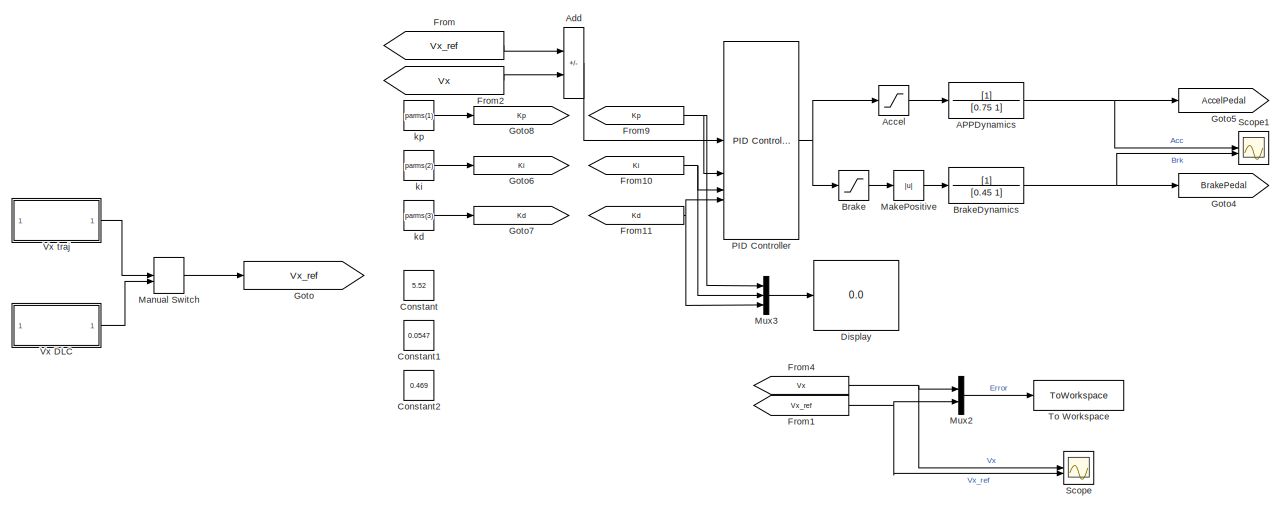
[diagram: root canvas - part 1/2, left side, full height]
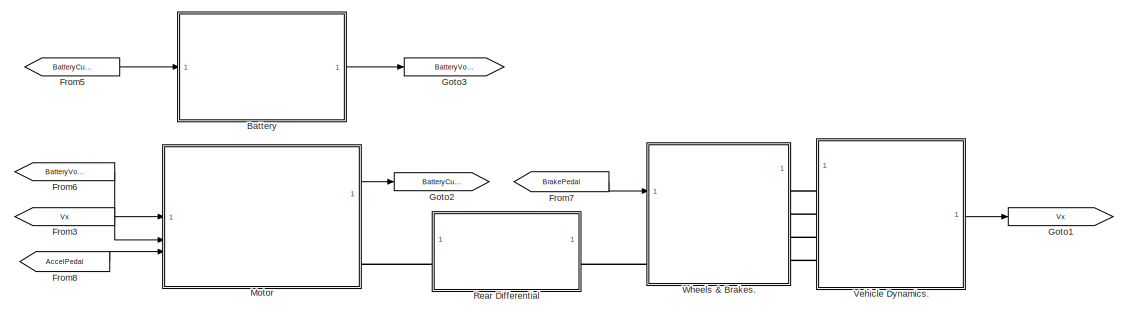
[diagram: root canvas - part 2/2, middle right region]
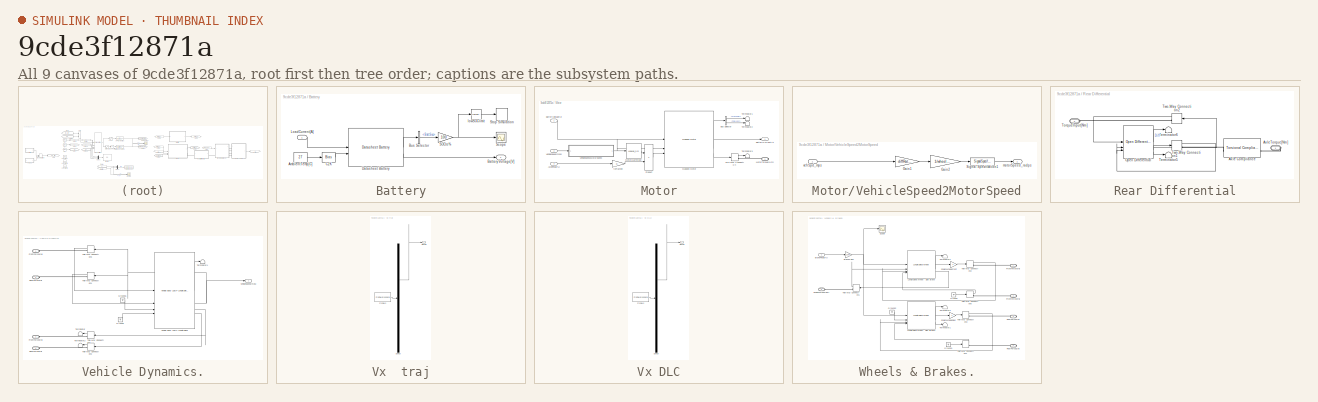
[diagram: thumbnail index - all 9 canvases of the model, root first then tree order]
MODEL slx_9cde3f12871a
KIND model
CONFIG AbsTol = auto
CONFIG EnableMultiTasking = off
CONFIG FixedStep = 1e-3
CONFIG MaxStep = auto
CONFIG MinStep = auto
CONFIG RelTol = 1e-2
CONFIG SampleTimeConstraint = Unconstrained
CONFIG SolverName = VariableStepAuto
CONFIG StartTime = 0.0
CONFIG StopTime = 8.6
WORKSPACE source: mxarray member
WORKSPACE Af = 4
WORKSPACE Cd = 0.3
WORKSPACE DrCycles: object (value not decoded)
WORKSPACE I = 1
WORKSPACE Kbr = 5000
WORKSPACE P = 20
WORKSPACE TimeHWFET = 765
WORKSPACE TimeUDDS = 1372
WORKSPACE TimeUS06 = 596
WORKSPACE axle_b = 10
WORKSPACE axle_k = 5000
WORKSPACE bevAxle_wc = 400
WORKSPACE bevNp = 2
WORKSPACE bevNs = 30
WORKSPACE diffRatio = 3.4
WORKSPACE diffRatio1 = 3.4
WORKSPACE motorMaxTorqueNm = [500 500 500 500 500 500 416.666666667 357.142857143 312.5 277.777777778 250 227.272727273 ... (16 elements, 1x16)]
WORKSPACE motorSpeedRadPs = [0 40 80 120 160 200 240 280 320 360 400 440 ... (16 elements, 1x16)]
WORKSPACE vehicleMass = 1500
WORKSPACE wheelRadius = 0.35
BLOCK [TransferFcn] APPDynamics
  Denominator = [0.75 1]
BLOCK [Saturate] Accel
  LowerLimit = 0
  UpperLimit = 1
BLOCK [Sum] Add
  IconShape = rectangular
  Inputs = +-
BLOCK [SubSystem] Battery
BLOCK [Constant] Battery/AmbientTemp[C]
  Value = 27
BLOCK [Outport] Battery/BatteryVoltage[V]
  VectorParamsAs1DForOutWhenUnconnected = off
BLOCK [BusSelector] Battery/Bus Selector
  OutputSignals = BattSoc
BLOCK [Bias] Battery/C2K
  Bias = 273
  SaturateOnIntegerOverflow = off
BLOCK [Reference] Battery/Datasheet Battery  REF=autolibdatasheetbattery/Datasheet Battery
  SourceBlock = autolibdatasheetbattery/Datasheet Battery
  SourceType = Datasheet Battery
BLOCK [Inport] Battery/LoadCurrent[A]
BLOCK [Gain] Battery/SOCto%
  Gain = 100
BLOCK [Scope] Battery/Scope
  Floating = off
  NumInputPorts = 1
  ScopeSpecificationString = Simulink.scopes.TimeScopeBlockCfg('CurrentConfiguration', extmgr.ConfigurationSet(extmgr.Configuration('Core','General UI',true),extmgr.Configuration('Core','Source UI',true),extmgr.Configuration('Sources','WiredSimulink',true,'DataLoggingVariableName','ScopeData1'),extmgr.Configuration('Visuals','Time Domain',true,'SerializedDisplays',{struct('MinYLimReal','85.50304','MaxYLimReal','101.61077','YL...<+1448ch>
BLOCK [Stop] Battery/Stop Simulation
BLOCK [Reference] Battery/lowSOClimit  REF=simulink/Logic and Bit
Operations/Compare
To Constant
  SourceBlock = simulink/Logic and Bit\nOperations/Compare\nTo Constant
  SourceType = Compare To Constant
BLOCK [Saturate] Brake
  LowerLimit = -1
  UpperLimit = 0
BLOCK [TransferFcn] BrakeDynamics
  Denominator = [0.45 1]
BLOCK [Constant] Constant
  Commented = on
  Value = 5.52
BLOCK [Constant] Constant1
  Commented = on
  Value = 0.0547
BLOCK [Constant] Constant2
  Commented = on
  Value = 0.469
BLOCK [Display] Display
  Decimation = 1
BLOCK [From] From
  GotoTag = Vx_ref
BLOCK [From] From1
  GotoTag = Vx_ref
BLOCK [From] From10
  GotoTag = Ki
BLOCK [From] From11
  GotoTag = Kd
BLOCK [From] From2
  GotoTag = Vx
BLOCK [From] From3
  GotoTag = Vx
BLOCK [From] From4
  GotoTag = Vx
BLOCK [From] From5
  GotoTag = BatteryCurrent
BLOCK [From] From6
  GotoTag = BatteryVoltage
BLOCK [From] From7
  GotoTag = BrakePedal
BLOCK [From] From8
  CopyFcn = Lib_CopyFcn(gcb);
  Description = FromInternal
  GotoTag = AccelPedal
  PreDeleteFcn = Lib_PreDeleteFcn(gcb);
  Tag = Controls_Lib
  UserDataPersistent = on
BLOCK [From] From9
  GotoTag = Kp
BLOCK [Goto] Goto
  CopyFcn = Lib_CopyFcn(gcb);
  Description = GotoInternal
  GotoTag = Vx_ref
  PreDeleteFcn = Lib_PreDeleteFcn(gcb);
  Tag = Controls_Lib
  UserDataPersistent = on
BLOCK [Goto] Goto1
  CopyFcn = Lib_CopyFcn(gcb);
  Description = GotoInternal
  GotoTag = Vx
  PreDeleteFcn = Lib_PreDeleteFcn(gcb);
  Tag = Controls_Lib
  UserDataPersistent = on
BLOCK [Goto] Goto2
  CopyFcn = Lib_CopyFcn(gcb);
  Description = GotoInternal
  GotoTag = BatteryCurrent
  PreDeleteFcn = Lib_PreDeleteFcn(gcb);
  Tag = Controls_Lib
  UserDataPersistent = on
BLOCK [Goto] Goto3
  CopyFcn = Lib_CopyFcn(gcb);
  Description = GotoInternal
  GotoTag = BatteryVoltage
  PreDeleteFcn = Lib_PreDeleteFcn(gcb);
  Tag = Controls_Lib
  UserDataPersistent = on
BLOCK [Goto] Goto4
  CopyFcn = Lib_CopyFcn(gcb);
  Description = GotoInternal
  GotoTag = BrakePedal
  PreDeleteFcn = Lib_PreDeleteFcn(gcb);
  Tag = Controls_Lib
  UserDataPersistent = on
BLOCK [Goto] Goto5
  CopyFcn = Lib_CopyFcn(gcb);
  Description = GotoInternal
  GotoTag = AccelPedal
  PreDeleteFcn = Lib_PreDeleteFcn(gcb);
  Tag = Controls_Lib
  UserDataPersistent = on
BLOCK [Goto] Goto6
  CopyFcn = Lib_CopyFcn(gcb);
  Description = GotoInternal
  GotoTag = Ki
  PreDeleteFcn = Lib_PreDeleteFcn(gcb);
  Tag = Controls_Lib
  UserDataPersistent = on
BLOCK [Goto] Goto7
  CopyFcn = Lib_CopyFcn(gcb);
  Description = GotoInternal
  GotoTag = Kd
  PreDeleteFcn = Lib_PreDeleteFcn(gcb);
  Tag = Controls_Lib
  UserDataPersistent = on
BLOCK [Goto] Goto8
  CopyFcn = Lib_CopyFcn(gcb);
  Description = GotoInternal
  GotoTag = Kp
  PreDeleteFcn = Lib_PreDeleteFcn(gcb);
  Tag = Controls_Lib
  UserDataPersistent = on
BLOCK [Abs] MakePositive
  SaturateOnIntegerOverflow = off
BLOCK [ManualSwitch] Manual Switch
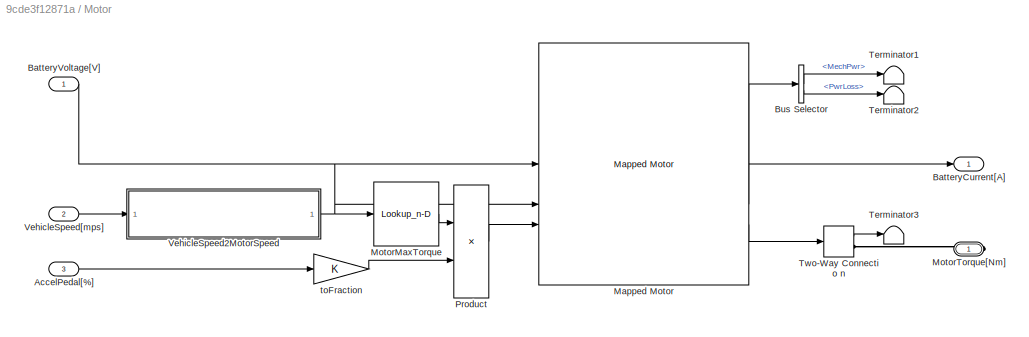
BLOCK [SubSystem] Motor
BLOCK [Inport] Motor/AccelPedal[%]
  Port = 3
BLOCK [Outport] Motor/BatteryCurrent[A]
  VectorParamsAs1DForOutWhenUnconnected = off
BLOCK [Inport] Motor/BatteryVoltage[V]
BLOCK [BusSelector] Motor/Bus Selector
  OutputSignals = MechPwr,PwrLoss
BLOCK [Reference] Motor/Mapped Motor  REF=autolibmappedmotor/Mapped Motor
  SourceBlock = autolibmappedmotor/Mapped Motor
  SourceType = MappedMotor
BLOCK [Lookup_n-D] Motor/MotorMaxTorque
  BreakpointsForDimension1 = motorSpeedRadPs
  ExtrapMethod = Clip
  InputPortMap = u0
  InternalRulePriority = Speed
  NumberOfTableDimensions = 1
  RndMeth = Simplest
  Table = motorMaxTorqueNm
BLOCK [PMIOPort] Motor/MotorTorque[Nm]
  Side = Right
BLOCK [Product] Motor/Product
BLOCK [Terminator] Motor/Terminator1
BLOCK [Terminator] Motor/Terminator2
BLOCK [Terminator] Motor/Terminator3
BLOCK [TwoWayConnection] Motor/Two-Way Connectio n
BLOCK [SubSystem] Motor/VehicleSpeed2MotorSpeed
BLOCK [Gain] Motor/VehicleSpeed2MotorSpeed/Gain1
  Gain = diffRatio
BLOCK [Gain] Motor/VehicleSpeed2MotorSpeed/Gain2
  Gain = 1/wheelRadius
BLOCK [SignalSpecification] Motor/VehicleSpeed2MotorSpeed/Signal Specification1
  Unit = rad/s
BLOCK [Outport] Motor/VehicleSpeed2MotorSpeed/motorSpeed_radps
  VectorParamsAs1DForOutWhenUnconnected = off
BLOCK [Inport] Motor/VehicleSpeed2MotorSpeed/vehSpd_mps
BLOCK [Inport] Motor/VehicleSpeed[mps]
  Port = 2
BLOCK [Gain] Motor/toFraction
BLOCK [Mux] Mux2
  DisplayOption = bar
  Inputs = 2
BLOCK [Mux] Mux3
  DisplayOption = bar
  Inputs = 3
BLOCK [Reference] PID Controller  REF=slpidlib/PID Controller
  SourceBlock = slpidlib/PID Controller
  SourceType = PID 1dof
BLOCK [SubSystem] Rear Differential
BLOCK [Reference] Rear Differential/Axle Compliance  REF=autolibsharedcoupling/Torsional Compliance
  LibrarySourceBlock = autolibcoupling/Torsional Compliance
  SourceBlock = autolibsharedcoupling/Torsional Compliance
  SourceType = Torsional Compliance
BLOCK [PMIOPort] Rear Differential/AxleTorque[Nm]
  Side = Right
BLOCK [Reference] Rear Differential/Open Differential  REF=autolibshareddiff/Open Differential
  SourceBlock = autolibshareddiff/Open Differential
  SourceType = Open Differential
BLOCK [Terminator] Rear Differential/Terminator5
BLOCK [Terminator] Rear Differential/Terminator6
BLOCK [PMIOPort] Rear Differential/TorqueInput[Nm]
  Port = 2
  Side = Left
BLOCK [TwoWayConnection] Rear Differential/Two-Way Connection1
BLOCK [TwoWayConnection] Rear Differential/Two-Way Connection2
BLOCK [Scope] Scope
  Floating = off
  NumInputPorts = 2
  ScopeSpecificationString = Simulink.scopes.TimeScopeBlockCfg('CurrentConfiguration', extmgr.ConfigurationSet(extmgr.Configuration('Core','General UI',true),extmgr.Configuration('Core','Source UI',true),extmgr.Configuration('Sources','WiredSimulink',true,'DataLoggingVariableName','ScopeData1'),extmgr.Configuration('Visuals','Time Domain',true,'SerializedDisplays',{struct('MinYLimReal','-2.57285','MaxYLimReal','23.15566','YLa...<+1536ch>
BLOCK [Scope] Scope1
  Floating = off
  NumInputPorts = 2
  ScopeSpecificationString = Simulink.scopes.TimeScopeBlockCfg('CurrentConfiguration', extmgr.ConfigurationSet(extmgr.Configuration('Core','General UI',true),extmgr.Configuration('Core','Source UI',true),extmgr.Configuration('Sources','WiredSimulink',true,'DataLoggingVariableName','ScopeData2'),extmgr.Configuration('Visuals','Time Domain',true,'SerializedDisplays',{struct('MinYLimReal','-0.125','MaxYLimReal','1.12498','YLabel...<+1526ch>
BLOCK [ToWorkspace] To Workspace
  FixptAsFi = on
  MaxDataPoints = inf
  SampleTime = -1
  SaveFormat = Timeseries
  VariableName = out
BLOCK [SubSystem] Vehicle Dynamics.
  AncestorBlock = Wheels_Driver_VehDyn_Lib/Vehicle Dynamics
  LibrarySourceBlock = Wheels_Driver_VehDyn_Lib/Vehicle Dynamics
BLOCK [PMIOPort] Vehicle Dynamics./FrontForceX[N]
  Side = Left
BLOCK [PMIOPort] Vehicle Dynamics./FrontForceZ[N]
  Port = 2
  Side = Left
BLOCK [Ground] Vehicle Dynamics./Ground
BLOCK [Ground] Vehicle Dynamics./Ground1
BLOCK [PMIOPort] Vehicle Dynamics./RearForceX[N]
  Port = 3
  Side = Left
BLOCK [PMIOPort] Vehicle Dynamics./RearForceZ[N]
  Port = 4
  Side = Left
BLOCK [Terminator] Vehicle Dynamics./Terminator
  NameLocation = top
BLOCK [Terminator] Vehicle Dynamics./Terminator1
BLOCK [Terminator] Vehicle Dynamics./Terminator2
  NameLocation = top
BLOCK [TwoWayConnection] Vehicle Dynamics./Two-Way Connection1
BLOCK [TwoWayConnection] Vehicle Dynamics./Two-Way Connection2
BLOCK [TwoWayConnection] Vehicle Dynamics./Two-Way Connection3
BLOCK [TwoWayConnection] Vehicle Dynamics./Two-Way Connection4
BLOCK [Reference] Vehicle Dynamics./Vehicle Body 1DOF Longitudinal  REF=autolibshared/Vehicle Body 1DOF Longitudinal
  SourceBlock = autolibshared/Vehicle Body 1DOF Longitudinal
  SourceType = Vehicle Body 1DOF Longitudinal
BLOCK [Outport] Vehicle Dynamics./VehicleSpeed[mps]
  VectorParamsAs1DForOutWhenUnconnected = off
BLOCK [SubSystem] Vx  traj
  ClipboardFcn = sigbuilder_block('clipboard');
  CloseFcn = sigbuilder_block('close');
  ContinueFcn = sigbuilder_block('continue');
  CopyFcn = sigbuilder_block('copy');
  DeleteFcn = sigbuilder_block('delete');
  LoadFcn = sigbuilder_block('load',[0 36 1920 986.25 ]);
  MaskHideContents = on
  ModelCloseFcn = sigbuilder_block('modelClose');
  NameChangeFcn = sigbuilder_block('namechange');
  OpenFcn = sigbuilder_block('open',[6 22.5 1428 689.25 ]);
  PauseFcn = sigbuilder_block('pause');
  PreSaveFcn = sigbuilder_block('preSave');
  StartFcn = sigbuilder_block('start');
  StopFcn = sigbuilder_block('stop');
  Tag = STV Subsys
BLOCK [Demux] Vx  traj/Demux
  DisplayOption = none
  Outputs = 1
  Tag = STV Demux
BLOCK [FromWorkspace] Vx  traj/FromWs
  Tag = STV FromWs
  VariableName = tuvar
BLOCK [Outport] Vx  traj/Signal 2
  Tag = STV Outport
BLOCK [SubSystem] Vx DLC
  ClipboardFcn = sigbuilder_block('clipboard');
  CloseFcn = sigbuilder_block('close');
  ContinueFcn = sigbuilder_block('continue');
  CopyFcn = sigbuilder_block('copy');
  DeleteFcn = sigbuilder_block('delete');
  LoadFcn = sigbuilder_block('load');
  MaskHideContents = on
  ModelCloseFcn = sigbuilder_block('modelClose');
  NameChangeFcn = sigbuilder_block('namechange');
  OpenFcn = sigbuilder_block('open',[227.25 168.75 1428 648.75 ]);
  PauseFcn = sigbuilder_block('pause');
  PreSaveFcn = sigbuilder_block('preSave');
  StartFcn = sigbuilder_block('start');
  StopFcn = sigbuilder_block('stop');
  Tag = STV Subsys
BLOCK [Demux] Vx DLC/Demux
  DisplayOption = none
  Outputs = 1
  Tag = STV Demux
BLOCK [FromWorkspace] Vx DLC/FromWs
  Tag = STV FromWs
  VariableName = tuvar
BLOCK [Outport] Vx DLC/Signal 1
  Tag = STV Outport
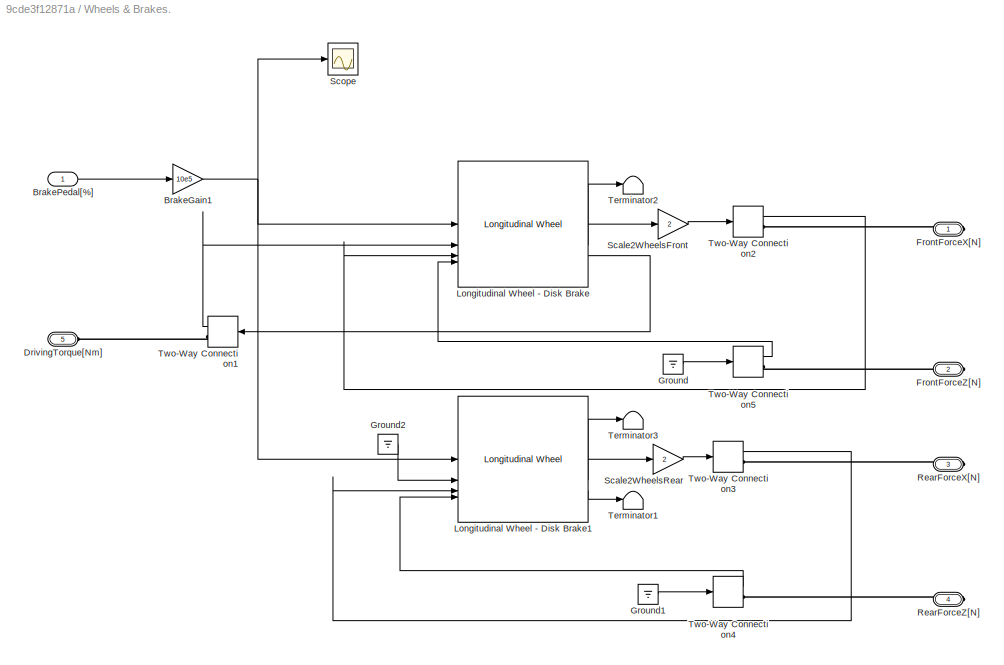
BLOCK [SubSystem] Wheels & Brakes.
  AncestorBlock = Wheels_Driver_VehDyn_Lib/Wheels & Brakes
  LibrarySourceBlock = Wheels_Driver_VehDyn_Lib/Wheels & Brakes
BLOCK [Gain] Wheels & Brakes./BrakeGain1
  Gain = 10e5
BLOCK [Inport] Wheels & Brakes./BrakePedal[%]
BLOCK [PMIOPort] Wheels & Brakes./DrivingTorque[Nm]
  Port = 5
  Side = Left
BLOCK [PMIOPort] Wheels & Brakes./FrontForceX[N]
  Side = Right
BLOCK [PMIOPort] Wheels & Brakes./FrontForceZ[N]
  Port = 2
  Side = Right
BLOCK [Ground] Wheels & Brakes./Ground
BLOCK [Ground] Wheels & Brakes./Ground1
BLOCK [Ground] Wheels & Brakes./Ground2
BLOCK [Reference] Wheels & Brakes./Longitudinal Wheel - Disk Brake  REF=autolibshared/Longitudinal Wheel
  AttributesFormatString = Fx Type: %<FxType>\nRolling Type: %<rollingType>
  SourceBlock = autolibshared/Longitudinal Wheel
  SourceType = Longitudinal Wheel
BLOCK [Reference] Wheels & Brakes./Longitudinal Wheel - Disk Brake1  REF=autolibshared/Longitudinal Wheel
  AttributesFormatString = Fx Type: %<FxType>\nRolling Type: %<rollingType>
  SourceBlock = autolibshared/Longitudinal Wheel
  SourceType = Longitudinal Wheel
BLOCK [PMIOPort] Wheels & Brakes./RearForceX[N]
  Port = 3
  Side = Right
BLOCK [PMIOPort] Wheels & Brakes./RearForceZ[N]
  Port = 4
  Side = Right
BLOCK [Gain] Wheels & Brakes./Scale2WheelsFront
  Gain = 2
BLOCK [Gain] Wheels & Brakes./Scale2WheelsRear
  Gain = 2
BLOCK [Scope] Wheels & Brakes./Scope
  Floating = off
  NumInputPorts = 1
  ScopeSpecificationString = Simulink.scopes.TimeScopeBlockCfg('CurrentConfiguration', extmgr.ConfigurationSet(extmgr.Configuration('Core','General UI',true),extmgr.Configuration('Core','Source UI',true),extmgr.Configuration('Sources','WiredSimulink',true,'DataLoggingVariableName','ScopeData3'),extmgr.Configuration('Visuals','Time Domain',true,'SerializedDisplays',{struct('MinYLimReal','-60654.21276','MaxYLimReal','545887.914...<+1455ch>
BLOCK [Terminator] Wheels & Brakes./Terminator1
BLOCK [Terminator] Wheels & Brakes./Terminator2
BLOCK [Terminator] Wheels & Brakes./Terminator3
BLOCK [TwoWayConnection] Wheels & Brakes./Two-Way Connection1
BLOCK [TwoWayConnection] Wheels & Brakes./Two-Way Connection2
  NameLocation = top
BLOCK [TwoWayConnection] Wheels & Brakes./Two-Way Connection3
  NameLocation = top
BLOCK [TwoWayConnection] Wheels & Brakes./Two-Way Connection4
  NameLocation = top
BLOCK [TwoWayConnection] Wheels & Brakes./Two-Way Connection5
  NameLocation = top
BLOCK [Constant] kd
  Value = parms(3)
BLOCK [Constant] ki
  Value = parms(2)
BLOCK [Constant] kp
  Value = parms(1)
NET APPDynamics:1 -> Goto5:1, Scope1:1
LINE Accel:1 -> APPDynamics:1
LINE Add:1 -> PID Controller:1
LINE Battery/AmbientTemp[C]:1 -> Battery/C2K:1
LINE Battery/Bus Selector:1 -> Battery/SOCto%:1
LINE Battery/C2K:1 -> Battery/Datasheet Battery:2
LINE Battery/Datasheet Battery:1 -> Battery/Bus Selector:1
LINE Battery/Datasheet Battery:2 -> Battery/BatteryVoltage[V]:1
LINE Battery/LoadCurrent[A]:1 -> Battery/Datasheet Battery:1
NET Battery/SOCto%:1 -> Battery/Scope:1, Battery/lowSOClimit:1
LINE Battery/lowSOClimit:1 -> Battery/Stop Simulation:1
LINE Battery:1 -> Goto3:1
LINE Brake:1 -> MakePositive:1
NET BrakeDynamics:1 -> Goto4:1, Scope1:2
NET From10:1 -> Mux3:2, PID Controller:3
NET From11:1 -> Mux3:3, PID Controller:4
NET From1:1 -> Mux2:2, Scope:2
LINE From2:1 -> Add:2
LINE From3:1 -> Motor:2
NET From4:1 -> Mux2:1, Scope:1
LINE From5:1 -> Battery:1
LINE From6:1 -> Motor:1
LINE From7:1 -> Wheels & Brakes.:1
LINE From8:1 -> Motor:3
NET From9:1 -> Mux3:1, PID Controller:2
LINE From:1 -> Add:1
LINE MakePositive:1 -> BrakeDynamics:1
LINE Manual Switch:1 -> Goto:1
LINE Motor/AccelPedal[%]:1 -> Motor/toFraction:1
LINE Motor/BatteryVoltage[V]:1 -> Motor/Mapped Motor:1
LINE Motor/Bus Selector:1 -> Motor/Terminator1:1
LINE Motor/Bus Selector:2 -> Motor/Terminator2:1
LINE Motor/Mapped Motor:1 -> Motor/Bus Selector:1
LINE Motor/Mapped Motor:2 -> Motor/BatteryCurrent[A]:1
LINE Motor/Mapped Motor:3 -> Motor/Two-Way Connectio n:1
LINE Motor/MotorMaxTorque:1 -> Motor/Product:1
LINE Motor/Product:1 -> Motor/Mapped Motor:3
LINE Motor/Two-Way Connectio n:1 -> Motor/Terminator3:1
LINE Motor/VehicleSpeed2MotorSpeed/Gain1:1 -> Motor/VehicleSpeed2MotorSpeed/Gain2:1
LINE Motor/VehicleSpeed2MotorSpeed/Gain2:1 -> Motor/VehicleSpeed2MotorSpeed/Signal Specification1:1
LINE Motor/VehicleSpeed2MotorSpeed/Signal Specification1:1 -> Motor/VehicleSpeed2MotorSpeed/motorSpeed_radps:1
LINE Motor/VehicleSpeed2MotorSpeed/vehSpd_mps:1 -> Motor/VehicleSpeed2MotorSpeed/Gain1:1
NET Motor/VehicleSpeed2MotorSpeed:1 -> Motor/Mapped Motor:2, Motor/MotorMaxTorque:1
LINE Motor/VehicleSpeed[mps]:1 -> Motor/VehicleSpeed2MotorSpeed:1
LINE Motor/toFraction:1 -> Motor/Product:2
LINE Motor:1 -> Goto2:1
LINE Mux2:1 -> To Workspace:1
LINE Mux3:1 -> Display:1
NET PID Controller:1 -> Accel:1, Brake:1
LINE Rear Differential/Open Differential:1 -> Rear Differential/Terminator6:1
LINE Rear Differential/Open Differential:2 -> Rear Differential/Two-Way Connection2:1
LINE Rear Differential/Open Differential:3 -> Rear Differential/Two-Way Connection1:1
LINE Rear Differential/Open Differential:4 -> Rear Differential/Terminator5:1
NET Rear Differential/Two-Way Connection1:1 -> Rear Differential/Open Differential:2, Rear Differential/Open Differential:3
LINE Rear Differential/Two-Way Connection2:1 -> Rear Differential/Open Differential:1
LINE Vehicle Dynamics.:1 -> Goto1:1
LINE Vx  traj:1 -> Manual Switch:1
LINE Vx DLC:1 -> Manual Switch:2
LINE kd:1 -> Goto7:1
LINE ki:1 -> Goto6:1
LINE kp:1 -> Goto8:1
PLINE Motor/MotorTorque[Nm]:RConn1 -- Motor/Two-Way Connectio n:RConn1
PLINE Motor:RConn1 -- Rear Differential:LConn1
PLINE Rear Differential/Axle Compliance:LConn1 -- Rear Differential/Two-Way Connection1:RConn1
PLINE Rear Differential/Axle Compliance:RConn1 -- Rear Differential/AxleTorque[Nm]:RConn1
PLINE Rear Differential/TorqueInput[Nm]:RConn1 -- Rear Differential/Two-Way Connection2:RConn1
PLINE Rear Differential:RConn1 -- Wheels & Brakes.:LConn1
PLINE Vehicle Dynamics.:LConn1 -- Wheels & Brakes.:RConn1
PLINE Vehicle Dynamics.:LConn2 -- Wheels & Brakes.:RConn2
PLINE Vehicle Dynamics.:LConn3 -- Wheels & Brakes.:RConn3
PLINE Vehicle Dynamics.:LConn4 -- Wheels & Brakes.:RConn4
note: NET lines group one-source signal fan-out (src -> all destinations, sorted); 1:1 wires keep LINE
